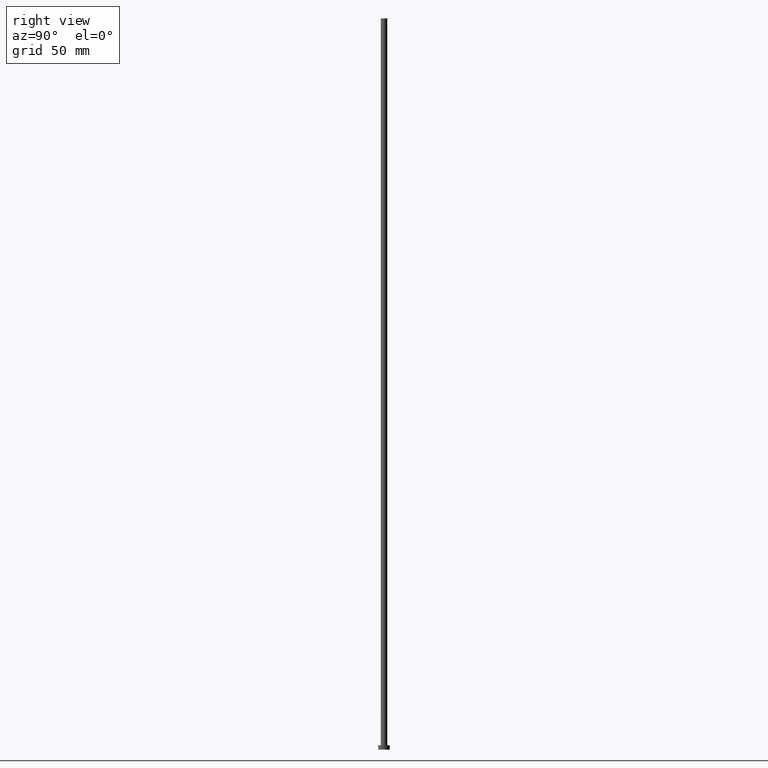
[diagram: clean part render]
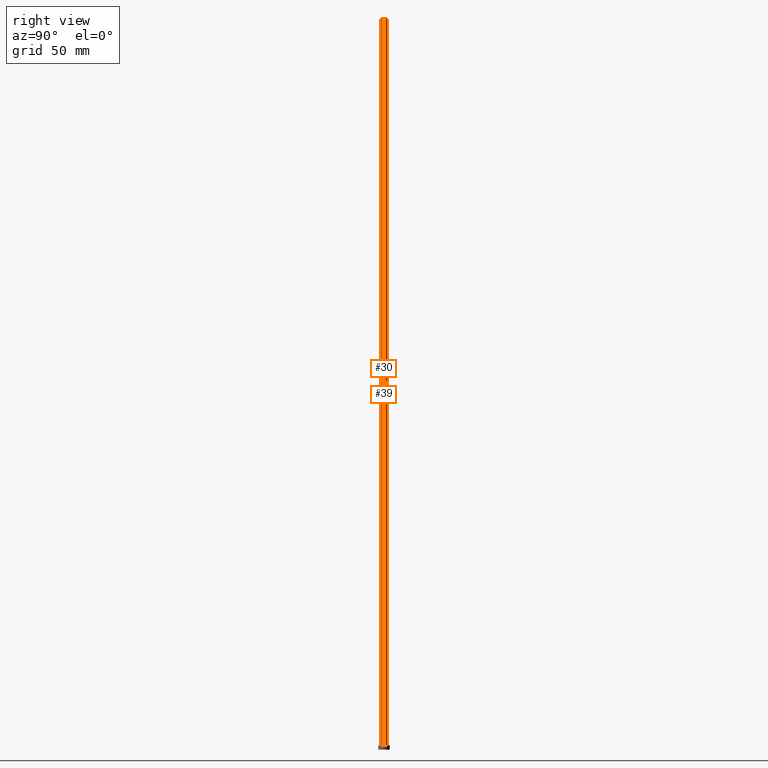
[diagram: same view with one multi-face feature highlighted, each face labeled with its STEP entity id]
A machine part, right view. The highlighted faces form ONE feature: a constant-radius fillet chain: 2 tangent blend faces with common blend radius 2.25 mm. The faces share edges in the B-rep.
Their STEP definitions:
[1] entity #30 (Cylinder):
#5 = LINE ( 'NONE', #236, #226 ) ;
#9 = VERTEX_POINT ( 'NONE', #183 ) ;
#16 = AXIS2_PLACEMENT_3D ( 'NONE', #230, #93, #35 ) ;
#18 = AXIS2_PLACEMENT_3D ( 'NONE', #158, #199, #46 ) ;
#21 = EDGE_CURVE ( 'NONE', #9, #123, #114, .T. ) ;
#23 = ORIENTED_EDGE ( 'NONE', *, *, #169, .F. ) ;
#30 = ADVANCED_FACE ( 'NONE', ( #36 ), #133, .T. ) ;
#35 = DIRECTION ( 'NONE',  ( 1.000000000000000000, 0.000000000000000000, 0.000000000000000000 ) ) ;
#36 = FACE_OUTER_BOUND ( 'NONE', #84, .T. ) ;
#42 = ORIENTED_EDGE ( 'NONE', *, *, #21, .T. ) ;
#46 = DIRECTION ( 'NONE',  ( 1.000000000000000000, 0.000000000000000000, 0.000000000000000000 ) ) ;
#72 = VECTOR ( 'NONE', #115, 1000.000000000000000 ) ;
#84 = EDGE_LOOP ( 'NONE', ( #182, #23, #212, #42 ) ) ;
#93 = DIRECTION ( 'NONE',  ( 0.000000000000000000, 0.000000000000000000, 1.000000000000000000 ) ) ;
#101 = VERTEX_POINT ( 'NONE', #154 ) ;
#106 = CIRCLE ( 'NONE', #18, 2.250000000000000000 ) ;
#108 = AXIS2_PLACEMENT_3D ( 'NONE', #254, #252, #187 ) ;
#114 = CIRCLE ( 'NONE', #16, 2.250000000000000000 ) ;
#115 = DIRECTION ( 'NONE',  ( -0.000000000000000000, -0.000000000000000000, -1.000000000000000000 ) ) ;
#116 = EDGE_CURVE ( 'NONE', #237, #123, #186, .T. ) ;
#123 = VERTEX_POINT ( 'NONE', #150 ) ;
#133 = CYLINDRICAL_SURFACE ( 'NONE', #108, 2.250000000000000000 ) ;
#150 = CARTESIAN_POINT ( 'NONE',  ( 2.250000000000000000, 2.755455298081543792E-16, 3.000000000000000000 ) ) ;
#154 = CARTESIAN_POINT ( 'NONE',  ( -2.250000000000000000, 0.000000000000000000, 500.0000000000000000 ) ) ;
#158 = CARTESIAN_POINT ( 'NONE',  ( 0.000000000000000000, 0.000000000000000000, 500.0000000000000000 ) ) ;
#169 = EDGE_CURVE ( 'NONE', #101, #237, #106, .T. ) ;
#178 = DIRECTION ( 'NONE',  ( -0.000000000000000000, -0.000000000000000000, -1.000000000000000000 ) ) ;
#182 = ORIENTED_EDGE ( 'NONE', *, *, #116, .F. ) ;
#183 = CARTESIAN_POINT ( 'NONE',  ( -2.250000000000000000, 0.000000000000000000, 3.000000000000000000 ) ) ;
#186 = LINE ( 'NONE', #234, #72 ) ;
#187 = DIRECTION ( 'NONE',  ( -1.000000000000000000, 0.000000000000000000, 0.000000000000000000 ) ) ;
#199 = DIRECTION ( 'NONE',  ( 0.000000000000000000, 0.000000000000000000, 1.000000000000000000 ) ) ;
#212 = ORIENTED_EDGE ( 'NONE', *, *, #240, .T. ) ;
#226 = VECTOR ( 'NONE', #178, 1000.000000000000000 ) ;
#230 = CARTESIAN_POINT ( 'NONE',  ( 0.000000000000000000, 0.000000000000000000, 3.000000000000000000 ) ) ;
#234 = CARTESIAN_POINT ( 'NONE',  ( 2.250000000000000000, 2.755455298081543792E-16, 500.0000000000000000 ) ) ;
#235 = CARTESIAN_POINT ( 'NONE',  ( 2.250000000000000000, 2.755455298081543792E-16, 500.0000000000000000 ) ) ;
#236 = CARTESIAN_POINT ( 'NONE',  ( -2.250000000000000000, 0.000000000000000000, 500.0000000000000000 ) ) ;
#237 = VERTEX_POINT ( 'NONE', #235 ) ;
#240 = EDGE_CURVE ( 'NONE', #101, #9, #5, .T. ) ;
#252 = DIRECTION ( 'NONE',  ( -0.000000000000000000, -0.000000000000000000, -1.000000000000000000 ) ) ;
#254 = CARTESIAN_POINT ( 'NONE',  ( 0.000000000000000000, 0.000000000000000000, 500.0000000000000000 ) ) ;
[2] entity #39 (Cylinder):
#1 = CARTESIAN_POINT ( 'NONE',  ( 0.000000000000000000, 0.000000000000000000, 3.000000000000000000 ) ) ;
#5 = LINE ( 'NONE', #236, #226 ) ;
#8 = CARTESIAN_POINT ( 'NONE',  ( 0.000000000000000000, 0.000000000000000000, 500.0000000000000000 ) ) ;
#9 = VERTEX_POINT ( 'NONE', #183 ) ;
#20 = ORIENTED_EDGE ( 'NONE', *, *, #116, .T. ) ;
#28 = CIRCLE ( 'NONE', #210, 2.250000000000000000 ) ;
#39 = ADVANCED_FACE ( 'NONE', ( #112 ), #173, .T. ) ;
#47 = EDGE_LOOP ( 'NONE', ( #241, #20, #96, #156 ) ) ;
#52 = CIRCLE ( 'NONE', #188, 2.250000000000000000 ) ;
#72 = VECTOR ( 'NONE', #115, 1000.000000000000000 ) ;
#78 = CARTESIAN_POINT ( 'NONE',  ( 0.000000000000000000, 0.000000000000000000, 500.0000000000000000 ) ) ;
#92 = EDGE_CURVE ( 'NONE', #123, #9, #52, .T. ) ;
#96 = ORIENTED_EDGE ( 'NONE', *, *, #92, .T. ) ;
#101 = VERTEX_POINT ( 'NONE', #154 ) ;
#112 = FACE_OUTER_BOUND ( 'NONE', #47, .T. ) ;
#115 = DIRECTION ( 'NONE',  ( -0.000000000000000000, -0.000000000000000000, -1.000000000000000000 ) ) ;
#116 = EDGE_CURVE ( 'NONE', #237, #123, #186, .T. ) ;
#123 = VERTEX_POINT ( 'NONE', #150 ) ;
#132 = AXIS2_PLACEMENT_3D ( 'NONE', #78, #253, #151 ) ;
#150 = CARTESIAN_POINT ( 'NONE',  ( 2.250000000000000000, 2.755455298081543792E-16, 3.000000000000000000 ) ) ;
#151 = DIRECTION ( 'NONE',  ( -1.000000000000000000, 0.000000000000000000, 0.000000000000000000 ) ) ;
#152 = DIRECTION ( 'NONE',  ( 0.000000000000000000, 0.000000000000000000, 1.000000000000000000 ) ) ;
#154 = CARTESIAN_POINT ( 'NONE',  ( -2.250000000000000000, 0.000000000000000000, 500.0000000000000000 ) ) ;
#156 = ORIENTED_EDGE ( 'NONE', *, *, #240, .F. ) ;
#173 = CYLINDRICAL_SURFACE ( 'NONE', #132, 2.250000000000000000 ) ;
#178 = DIRECTION ( 'NONE',  ( -0.000000000000000000, -0.000000000000000000, -1.000000000000000000 ) ) ;
#183 = CARTESIAN_POINT ( 'NONE',  ( -2.250000000000000000, 0.000000000000000000, 3.000000000000000000 ) ) ;
#186 = LINE ( 'NONE', #234, #72 ) ;
#188 = AXIS2_PLACEMENT_3D ( 'NONE', #1, #152, #250 ) ;
#194 = DIRECTION ( 'NONE',  ( 1.000000000000000000, 0.000000000000000000, 0.000000000000000000 ) ) ;
#210 = AXIS2_PLACEMENT_3D ( 'NONE', #8, #217, #194 ) ;
#217 = DIRECTION ( 'NONE',  ( 0.000000000000000000, 0.000000000000000000, 1.000000000000000000 ) ) ;
#225 = EDGE_CURVE ( 'NONE', #237, #101, #28, .T. ) ;
#226 = VECTOR ( 'NONE', #178, 1000.000000000000000 ) ;
#234 = CARTESIAN_POINT ( 'NONE',  ( 2.250000000000000000, 2.755455298081543792E-16, 500.0000000000000000 ) ) ;
#235 = CARTESIAN_POINT ( 'NONE',  ( 2.250000000000000000, 2.755455298081543792E-16, 500.0000000000000000 ) ) ;
#236 = CARTESIAN_POINT ( 'NONE',  ( -2.250000000000000000, 0.000000000000000000, 500.0000000000000000 ) ) ;
#237 = VERTEX_POINT ( 'NONE', #235 ) ;
#240 = EDGE_CURVE ( 'NONE', #101, #9, #5, .T. ) ;
#241 = ORIENTED_EDGE ( 'NONE', *, *, #225, .F. ) ;
#250 = DIRECTION ( 'NONE',  ( 1.000000000000000000, 0.000000000000000000, 0.000000000000000000 ) ) ;
#253 = DIRECTION ( 'NONE',  ( -0.000000000000000000, -0.000000000000000000, -1.000000000000000000 ) ) ;